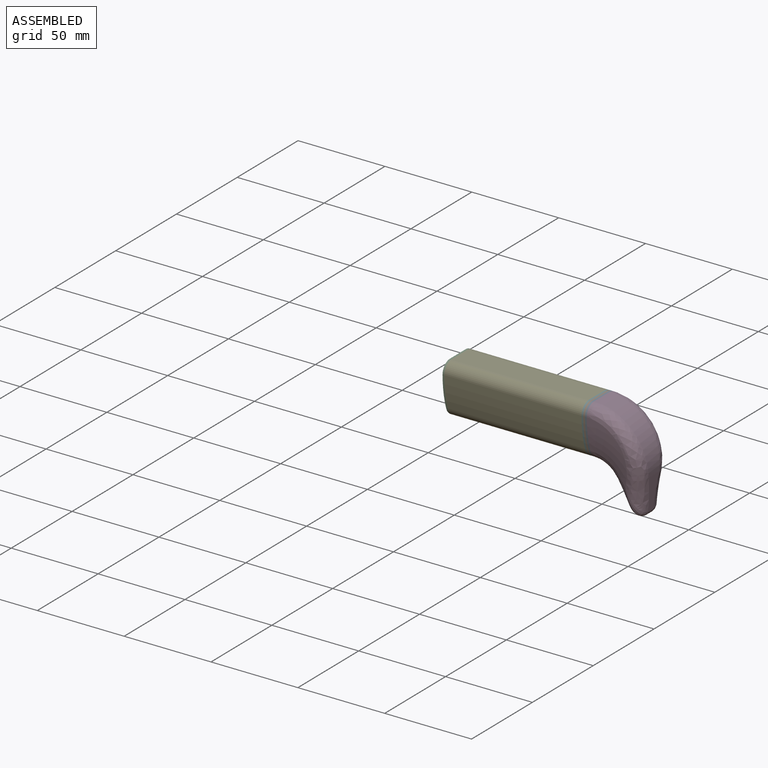
[diagram: assembled view]
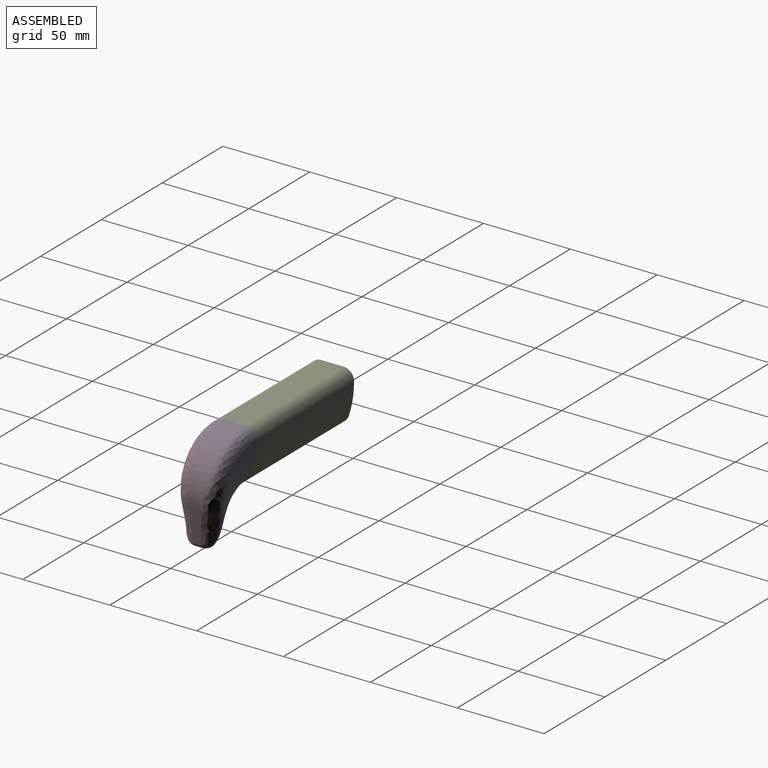
[diagram: assembled view, second angle]
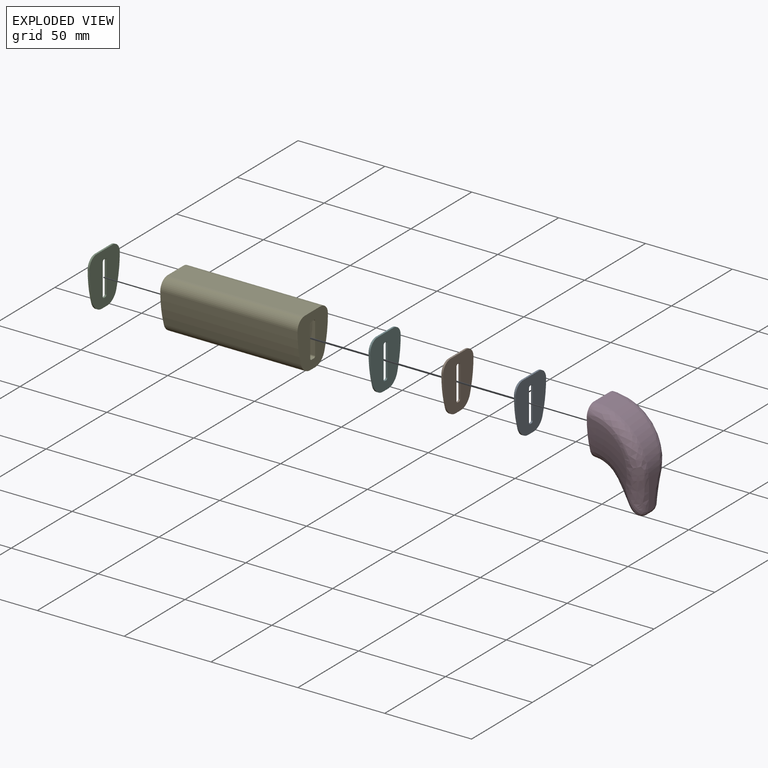
[diagram: exploded view]
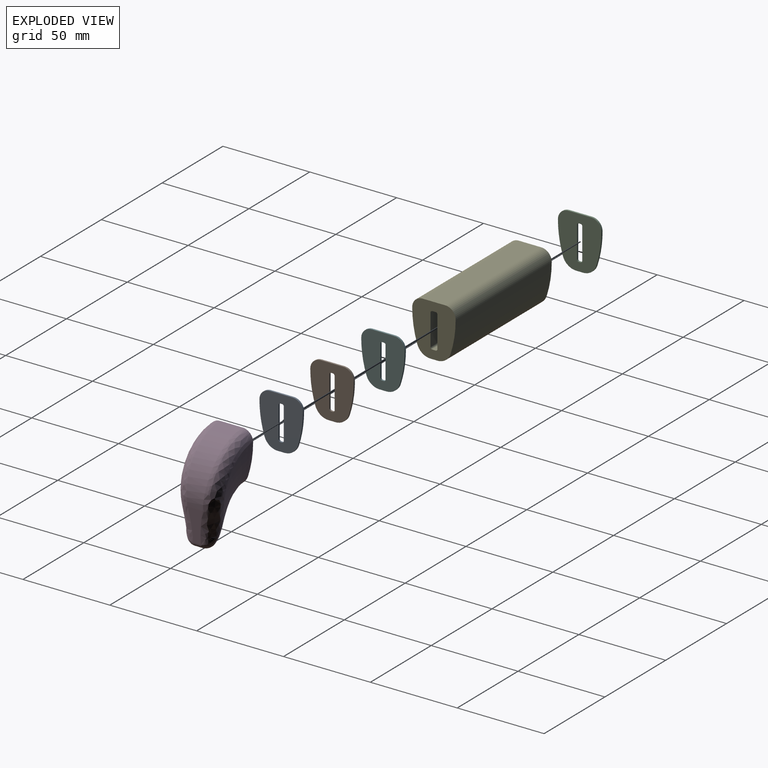
[diagram: exploded view, second angle]
ASSEMBLY  parts=6 mates=5
PART A: 20 faces, bbox 1x25x30 mm
  f0: cylinder r=1mm len=1mm, axis (1,0,0), area 1.6mm2, adj f1,f17,f18,f19
  f1: plane 1x1mm, normal (0,0,-1), area 1mm2, adj f0,f2,f18,f19
  f2: cylinder r=1mm len=1mm, axis (1,0,0), area 1.6mm2, adj f1,f3,f18,f19
  f3: plane 18x1mm, normal (0,-1,0), area 18mm2, adj f2,f4,f18,f19
  f4: cylinder r=1mm len=1mm, axis (1,0,0), area 1.6mm2, adj f3,f5,f18,f19
  f5: plane 1x1mm, normal (0,0,1), area 1mm2, adj f4,f6,f18,f19
  f6: cylinder r=1mm len=1mm, axis (1,0,0), area 1.6mm2, adj f5,f17,f18,f19
  f7: plane 1x0.02mm, normal (0,-1,0), area 0mm2, adj f8,f16,f18,f19
  f8: cylinder r=60mm len=18.44mm, axis (1,0,0), area 18.7mm2, adj f7,f9,f18,f19
  f9: extruded ~7.61x5.54mm, area 10.1mm2, adj f8,f10,f18,f19
  f10: plane 3.97x1mm, normal (0,0,-1), area 4mm2, adj f9,f11,f18,f19
  f11: extruded ~7.61x5.54mm, area 10.1mm2, adj f10,f12,f18,f19
  f12: cylinder r=60mm len=18.44mm, axis (1,0,0), area 18.7mm2, adj f11,f13,f18,f19
  f13: plane 1x0.02mm, normal (0,1,0), area 0mm2, adj f12,f14,f18,f19
  f14: extruded ~6x6mm, area 9.4mm2, adj f13,f15,f18,f19
  f15: plane 13x1mm, normal (0,0,1), area 13mm2, adj f14,f16,f18,f19
  f16: extruded ~6x6mm, area 9.4mm2, adj f7,f15,f18,f19
  f17: plane 18x1mm, normal (0,1,0), area 18mm2, adj f0,f6,f18,f19
  f18: plane 30x25mm, normal (-1,0,0), area 585.4mm2, adj f0,f1,f2,f3,f4,f5,f6,f7
  f19: plane 30x25mm, normal (1,0,0), area 585.4mm2, adj f0,f1,f2,f3,f4,f5,f6,f7
PART B: same geometry as A
PART C: same geometry as A
PART D: 35 faces, bbox 39.4x26.9x58.6 mm
  f0: plane 16.55x10.94mm, normal (-0.84,0,-0.54), area 106.2mm2, adj f1,f5,f11,f12,f18,f20
  f1: cylinder r=3mm len=5.51mm, axis (0,1,0), area 32.9mm2, adj f0,f2,f12,f20
  f2: plane 19.8x9.52mm, normal (1,0,-0.09), area 107.6mm2, adj f1,f3,f14,f21
  f3: cylinder r=30mm len=32.61mm, axis (0,1,0), area 586.3mm2, adj f2,f4,f15,f16,f22,f23
  f4: plane 30.2x25.2mm, normal (-1,0,0), area 585.3mm2, adj f3,f5,f6,f7,f8,f9,f10,f16
  f5: cylinder r=15mm len=12.61mm, axis (0,1,0), area 60.8mm2, adj f0,f4,f10,f17
  f6: plane 1.55x0.05mm, normal (0,-1,0), area 0mm2, adj f4,f8,f16
  f7: plane 1.55x0.05mm, normal (0,1,0), area 0mm2, adj f4,f9,f23
  f8: torus R=38.98mm, axis (0,-1,0), area 417.8mm2, adj f4,f6,f10,f11,f14,f15
  f9: torus R=38.98mm, axis (0,-1,0), area 417.8mm2, adj f4,f7,f17,f18,f21,f22
  f10: bspline ~18.22x12.49mm, area 169.4mm2, adj f4,f5,f8,f11
  f11: bspline ~18.92x15.27mm, area 120.2mm2, adj f0,f8,f10,f13
  f12: bspline ~5.84x3.53mm, area 24mm2, adj f0,f1,f13,f14
  f13: bspline ~18.78x7.32mm, area 41.1mm2, adj f11,f12,f14
  f14: bspline ~18.97x11.33mm, area 174.3mm2, adj f2,f8,f12,f13,f15
  f15: bspline ~33.67x28.48mm, area 463mm2, adj f3,f8,f14,f16
  f16: bspline ~6.05x6mm, area 16.9mm2, adj f3,f4,f6,f15
  f17: bspline ~17.19x12.42mm, area 169.4mm2, adj f4,f5,f9,f18
  f18: bspline ~18.92x15.27mm, area 120.2mm2, adj f0,f9,f17,f19
  f19: bspline ~18.78x7.32mm, area 41.2mm2, adj f18,f20,f21
  f20: bspline ~5.84x3.53mm, area 24mm2, adj f0,f1,f19,f21
  f21: bspline ~19.6x11.37mm, area 174.3mm2, adj f2,f9,f19,f20,f22
  f22: bspline ~33.67x28.48mm, area 463mm2, adj f3,f9,f21,f23
  f23: bspline ~6.05x6mm, area 16.9mm2, adj f3,f4,f7,f22
  f24: plane 7x1mm, normal (0,0,-1), area 7mm2, adj f4,f25,f31,f32
  f25: cylinder r=1mm len=7mm, axis (-1,0,0), area 11mm2, adj f4,f24,f26,f32
  f26: plane 18x7mm, normal (0,-1,0), area 119.7mm2, adj f4,f25,f27,f32,f33,f34
  f27: cylinder r=1mm len=7mm, axis (-1,0,0), area 11mm2, adj f4,f26,f28,f32
  f28: plane 7x1mm, normal (0,0,1), area 7mm2, adj f4,f27,f29,f32
  f29: cylinder r=1mm len=7mm, axis (-1,0,0), area 11mm2, adj f4,f28,f30,f32
  f30: plane 18x7mm, normal (0,1,0), area 119.7mm2, adj f4,f29,f31,f32,f33,f34
  f31: cylinder r=1mm len=7mm, axis (-1,0,0), area 11mm2, adj f4,f24,f30,f32
  f32: plane 20x3mm, normal (-1,0,0), area 59.1mm2, adj f24,f25,f26,f27,f28,f29,f30,f31
  f33: cylinder r=1mm len=3mm, axis (0,-1,0), area 18.8mm2, adj f26,f30
  f34: cylinder r=1mm len=3mm, axis (0,-1,0), area 18.8mm2, adj f26,f30
PART E: 20 faces, bbox 25x79x30 mm
  f0: plane 30x25mm, normal (0,1,0), area 565.3mm2, adj f2,f3,f4,f5,f6,f7,f8,f9
  f1: plane 30x25mm, normal (0,-1,0), area 565.3mm2, adj f2,f3,f4,f5,f6,f7,f8,f9
  f2: plane 79x13mm, normal (0,0,1), area 1027mm2, adj f0,f1,f6,f7
  f3: plane 79x3.97mm, normal (0,0,-1), area 313.5mm2, adj f0,f1,f10,f11
  f4: plane 79x0.02mm, normal (1,0,0), area 1.6mm2, adj f0,f1,f7,f8
  f5: plane 79x0.02mm, normal (-1,0,0), area 1.6mm2, adj f0,f1,f6,f9
  f6: cylinder r=6mm len=79mm, axis (0,-1,0), area 744.6mm2, adj f0,f1,f2,f5
  f7: cylinder r=6mm len=79mm, axis (0,1,0), area 744.6mm2, adj f0,f1,f2,f4
  f8: cylinder r=60mm len=79mm, axis (0,-1,0), area 1480.5mm2, adj f0,f1,f4,f11
  f9: cylinder r=60mm len=79mm, axis (0,-1,0), area 1480.5mm2, adj f0,f1,f5,f10
  f10: cylinder r=8mm len=79mm, axis (0,-1,0), area 795.3mm2, adj f0,f1,f3,f9
  f11: cylinder r=8mm len=79mm, axis (0,-1,0), area 795.3mm2, adj f0,f1,f3,f8
  f12: plane 79x18mm, normal (-1,0,0), area 1422mm2, adj f0,f1,f13,f19
  f13: cylinder r=1mm len=79mm, axis (0,-1,0), area 124.1mm2, adj f0,f1,f12,f14
  f14: plane 79x2mm, normal (0,0,-1), area 158mm2, adj f0,f1,f13,f15
  f15: cylinder r=1mm len=79mm, axis (0,-1,0), area 124.1mm2, adj f0,f1,f14,f16
  f16: plane 79x18mm, normal (1,0,0), area 1422mm2, adj f0,f1,f15,f17
  f17: cylinder r=1mm len=79mm, axis (0,-1,0), area 124.1mm2, adj f0,f1,f16,f18
  f18: plane 79x2mm, normal (0,0,1), area 158mm2, adj f0,f1,f17,f19
  f19: cylinder r=1mm len=79mm, axis (0,-1,0), area 124.1mm2, adj f0,f1,f12,f18
PART F: same geometry as A
PLACE A rot(axis=(0,0,1),180deg) t=(-1,0,0)mm
PLACE B rot(axis=(0,0,1),180deg) t=(-2,0,0)mm
PLACE C rot(axis=(0,0,-1),180deg) t=(-83,0,0)mm
PLACE D at identity fixed
PLACE E rot(axis=(0,0,1),90deg) t=(-42.5,0,-15)mm
PLACE F rot(axis=(0,0,1),180deg) t=(-3,0,0)mm
MATE fastened A.f18 <-> D.f4  axis (1,0,0) through (0,6.5,0)mm
MATE fastened B.f18 <-> A.f19  axis (1,0,0) through (-1,-6.5,0)mm
MATE fastened C.f18 <-> E.f0  axis (1,0,0) through (-82,6.5,0)mm
MATE fastened E.f1 <-> F.f19  axis (1,0,0) through (-3,6.5,0)mm
MATE fastened F.f18 <-> B.f19  axis (1,0,0) through (-2,6.5,0)mm
